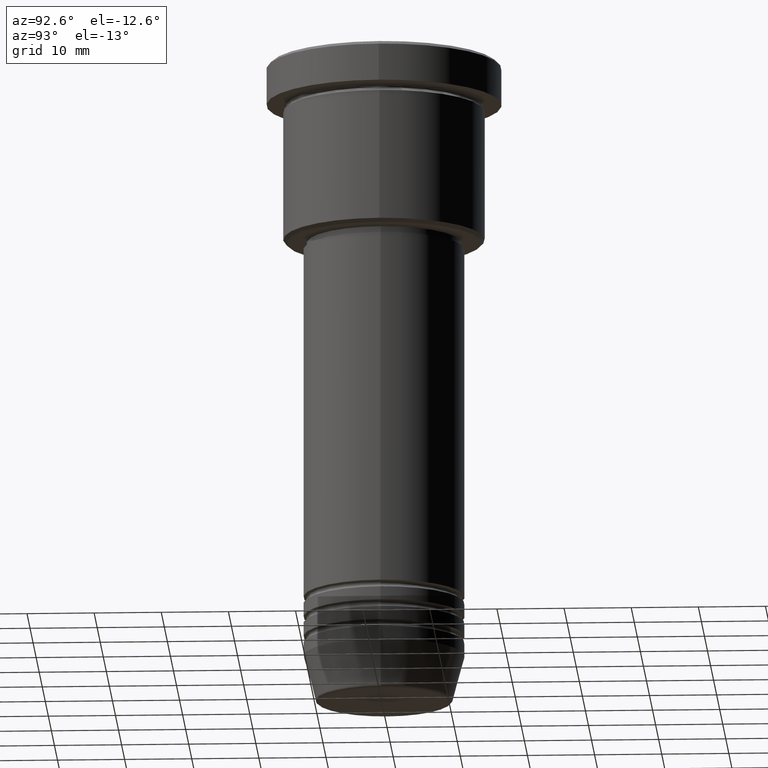
[diagram: clean part render]
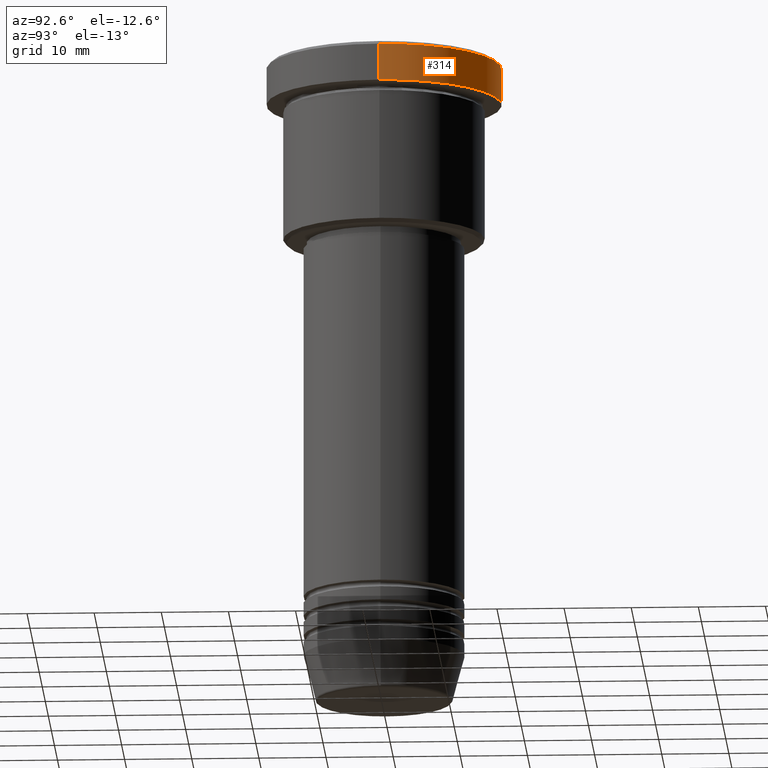
[diagram: same view with one face highlighted and labeled with its STEP entity id]
A machine part, auxiliary view. The second image highlights one B-rep face of the part: STEP entity #314.
In plain terms, the highlighted cylindrical surface (partial cylindrical patch) has radius 17.5 mm, axis along (-0, -0, 1).
Its self-contained STEP definition (entity closure, byte-faithful):
#58 = CARTESIAN_POINT ( 'NONE',  ( 17.50000000000000000, 0.000000000000000000, -5.999999999999995559 ) ) ;
#67 = AXIS2_PLACEMENT_3D ( 'NONE', #321, #598, #515 ) ;
#121 = LINE ( 'NONE', #737, #403 ) ;
#138 = EDGE_CURVE ( 'NONE', #1091, #692, #121, .T. ) ;
#166 = EDGE_CURVE ( 'NONE', #692, #794, #385, .T. ) ;
#208 = CARTESIAN_POINT ( 'NONE',  ( 0.000000000000000000, 0.000000000000000000, -0.5000000000000143219 ) ) ;
#216 = CARTESIAN_POINT ( 'NONE',  ( -17.50000000000000000, 2.143131898507868248E-15, -5.999999999999995559 ) ) ;
#219 = DIRECTION ( 'NONE',  ( -0.000000000000000000, -0.000000000000000000, 1.000000000000000000 ) ) ;
#236 = CARTESIAN_POINT ( 'NONE',  ( 0.000000000000000000, 0.000000000000000000, 0.000000000000000000 ) ) ;
#252 = DIRECTION ( 'NONE',  ( -0.000000000000000000, -0.000000000000000000, 1.000000000000000000 ) ) ;
#262 = VERTEX_POINT ( 'NONE', #58 ) ;
#314 = ADVANCED_FACE ( 'NONE', ( #1050 ), #712, .T. ) ;
#321 = CARTESIAN_POINT ( 'NONE',  ( 0.000000000000000000, 0.000000000000000000, -5.999999999999995559 ) ) ;
#340 = CARTESIAN_POINT ( 'NONE',  ( 17.50000000000000000, 0.000000000000000000, 0.000000000000000000 ) ) ;
#385 = CIRCLE ( 'NONE', #552, 17.50000000000000000 ) ;
#403 = VECTOR ( 'NONE', #219, 1000.000000000000000 ) ;
#416 = CARTESIAN_POINT ( 'NONE',  ( -17.50000000000000000, 2.143131898507868248E-15, -0.5000000000000143219 ) ) ;
#442 = VECTOR ( 'NONE', #811, 1000.000000000000000 ) ;
#476 = CIRCLE ( 'NONE', #67, 17.50000000000000000 ) ;
#502 = DIRECTION ( 'NONE',  ( 1.000000000000000000, 0.000000000000000000, 0.000000000000000000 ) ) ;
#515 = DIRECTION ( 'NONE',  ( 1.000000000000000000, 0.000000000000000000, 0.000000000000000000 ) ) ;
#552 = AXIS2_PLACEMENT_3D ( 'NONE', #208, #1111, #1028 ) ;
#598 = DIRECTION ( 'NONE',  ( -0.000000000000000000, -0.000000000000000000, 1.000000000000000000 ) ) ;
#602 = ORIENTED_EDGE ( 'NONE', *, *, #138, .T. ) ;
#692 = VERTEX_POINT ( 'NONE', #416 ) ;
#712 = CYLINDRICAL_SURFACE ( 'NONE', #962, 17.50000000000000000 ) ;
#737 = CARTESIAN_POINT ( 'NONE',  ( -17.50000000000000000, 2.143131898507868248E-15, 0.000000000000000000 ) ) ;
#754 = ORIENTED_EDGE ( 'NONE', *, *, #166, .T. ) ;
#794 = VERTEX_POINT ( 'NONE', #1134 ) ;
#811 = DIRECTION ( 'NONE',  ( -0.000000000000000000, -0.000000000000000000, 1.000000000000000000 ) ) ;
#823 = EDGE_CURVE ( 'NONE', #262, #794, #1123, .T. ) ;
#962 = AXIS2_PLACEMENT_3D ( 'NONE', #236, #252, #502 ) ;
#964 = ORIENTED_EDGE ( 'NONE', *, *, #1142, .T. ) ;
#1028 = DIRECTION ( 'NONE',  ( 1.000000000000000000, 0.000000000000000000, 0.000000000000000000 ) ) ;
#1050 = FACE_OUTER_BOUND ( 'NONE', #1114, .T. ) ;
#1091 = VERTEX_POINT ( 'NONE', #216 ) ;
#1097 = ORIENTED_EDGE ( 'NONE', *, *, #823, .F. ) ;
#1111 = DIRECTION ( 'NONE',  ( 0.000000000000000000, 0.000000000000000000, -1.000000000000000000 ) ) ;
#1114 = EDGE_LOOP ( 'NONE', ( #964, #602, #754, #1097 ) ) ;
#1123 = LINE ( 'NONE', #340, #442 ) ;
#1134 = CARTESIAN_POINT ( 'NONE',  ( 17.50000000000000000, 0.000000000000000000, -0.5000000000000143219 ) ) ;
#1142 = EDGE_CURVE ( 'NONE', #262, #1091, #476, .T. ) ;